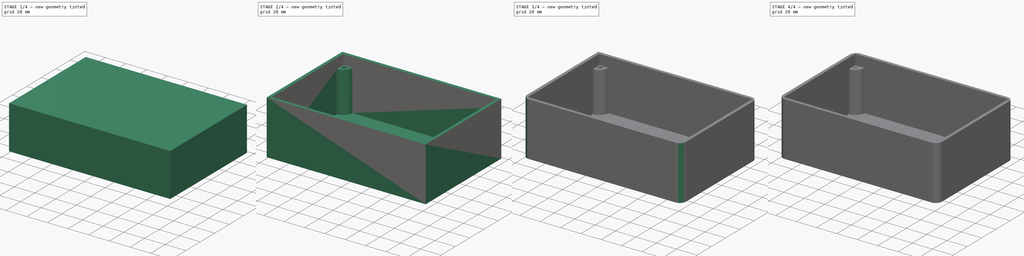
[diagram: build sequence overview — one tinted view per stage of 4, left to right]
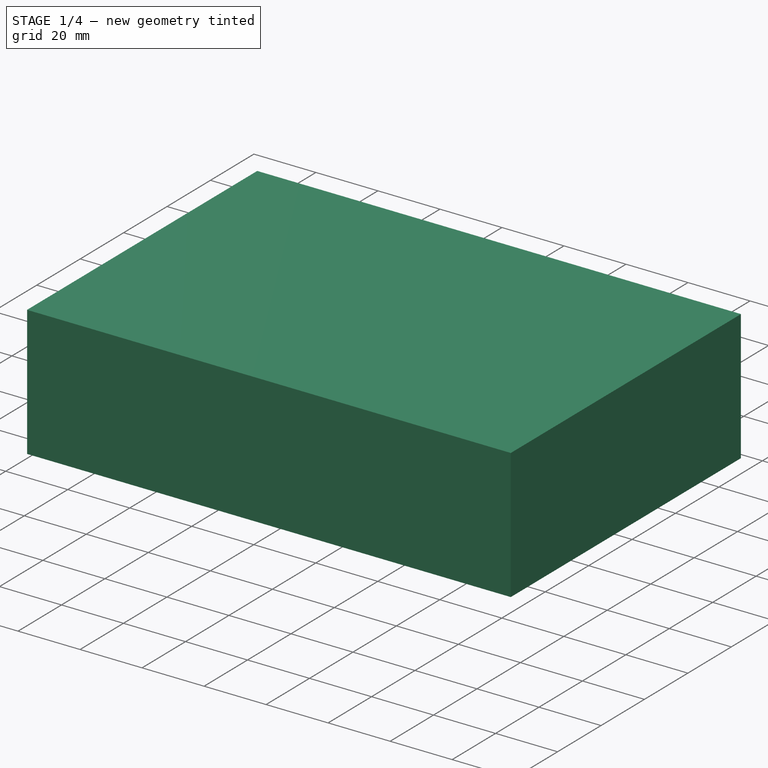
[diagram: stage 1 of 4 — iso view after this stage's code; geometry added in this stage tinted green]
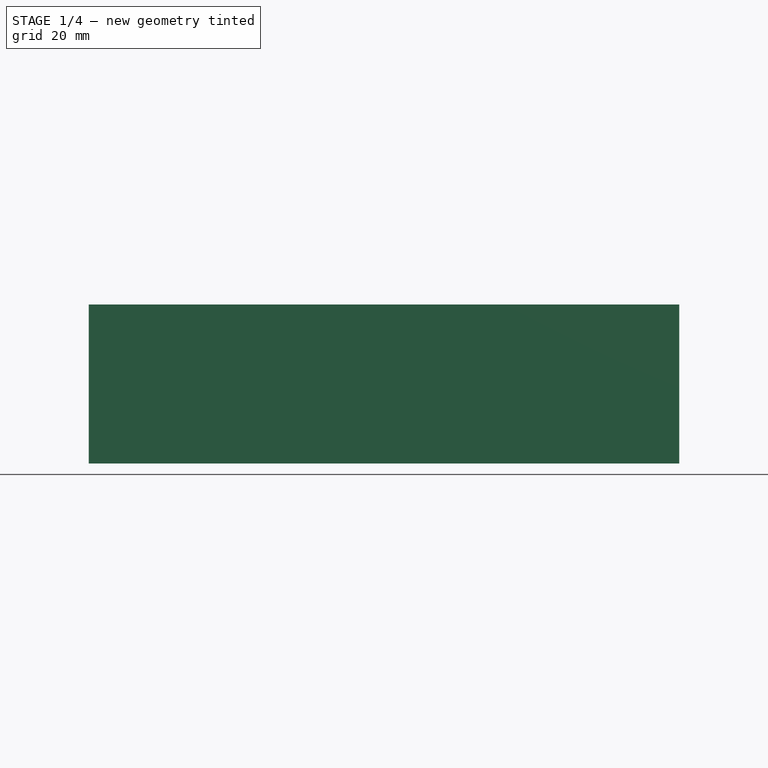
[diagram: stage 1 of 4 — front view after this stage's code; geometry added in this stage tinted green]
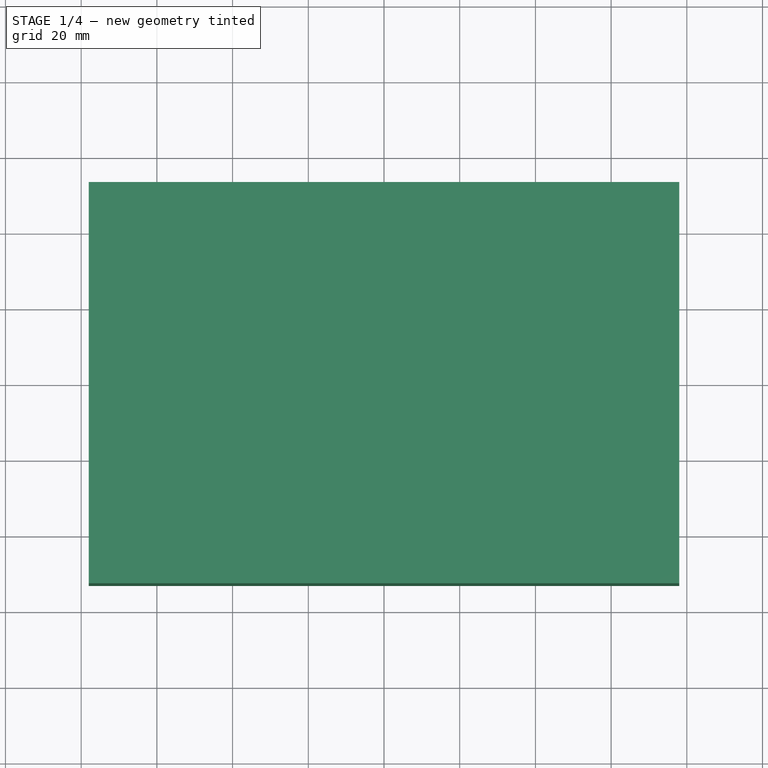
[diagram: stage 1 of 4 — top view after this stage's code; geometry added in this stage tinted green]
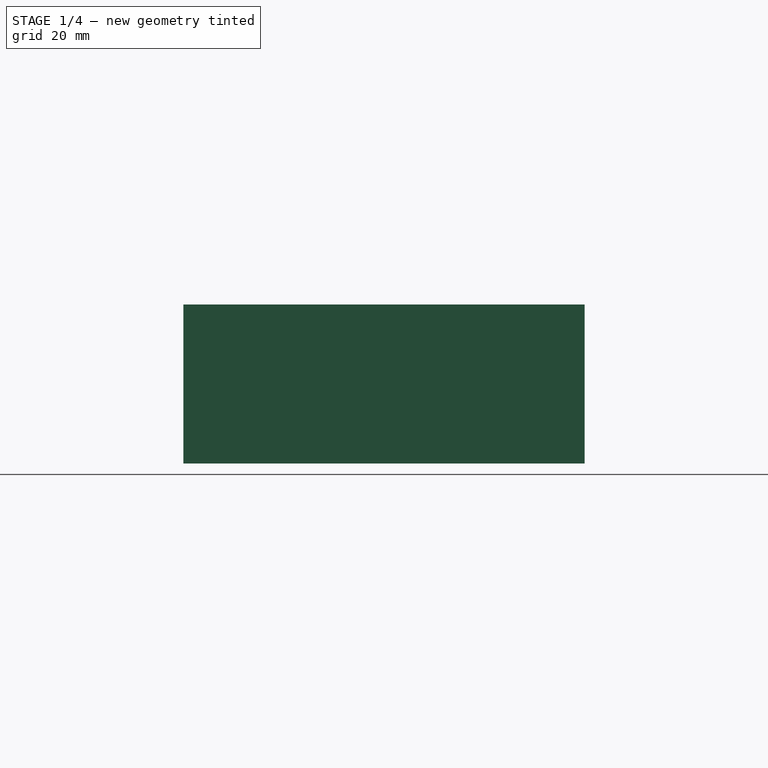
[diagram: stage 1 of 4 — right view after this stage's code; geometry added in this stage tinted green]
FCSTD DOCUMENT  (FreeCAD 1.0R39319 (Git))
Label: box 1
License: All rights reserved
LicenseURL: https://en.wikipedia.org/wiki/All_rights_reserved
objects: Sketcher::SketchObject×4, PartDesign::Fillet×4, PartDesign::Pad×3, PartDesign::Thickness×1, PartDesign::Mirrored×1, PartDesign::Hole×1, PartDesign::Body×1
note: 38 computed .brp shape members not serialized (recipe doc carries the construction recipe); baked Part::Feature solids carry a one-line shape summary decoded from their .brp

FEATURE [Sketcher::SketchObject] Sketch
  ArcFitTolerance = 1e-06
  AttachmentSupport = -> [XY_Plane]
  FullyConstrained = true
  MakeInternals = false
  MapMode = 5
  sketch-geometry (5):
    g0: LineSegment StartX=-75 StartY=-50 StartZ=0 EndX=75 EndY=-50 EndZ=0
    g1: LineSegment StartX=75 StartY=-50 StartZ=0 EndX=75 EndY=50 EndZ=0
    g2: LineSegment StartX=75 StartY=50 StartZ=0 EndX=-75 EndY=50 EndZ=0
    g3: LineSegment StartX=-75 StartY=50 StartZ=0 EndX=-75 EndY=-50 EndZ=0
    g4: GeomPoint [constr] X=0 Y=0 Z=0
  constraints (12):
    c: Coincident(g0,g1)
    c: Coincident(g1,g2)
    c: Coincident(g2,g3)
    c: Coincident(g3,g0)
    c: Horizontal(g0)
    c: Horizontal(g2)
    c: Vertical(g1)
    c: Vertical(g3)
    c: Symmetric(g2,g0,g4)
    c: Distance(g1,g3) = 150
    c: Distance(g0,g2) = 100
    c: Coincident(g4,g-1)
FEATURE [PartDesign::Pad] Pad
  AlongSketchNormal = false
  Direction = (0,0,1)
  Length = 39
  Length2 = 10
  Midplane = true
  Profile = -> Sketch
  ReferenceAxis = -> Sketch [N_Axis]
  Refine = true
  Suppressed = false
  Type = 0
FEATURE [PartDesign::Thickness] Thickness
  Base = -> Pad [Face5]
  BaseFeature = -> Pad
  Intersection = false
  Join = 1
  Mode = 0
  Refine = true
  SupportTransform = false
  Suppressed = false
  Value = 3
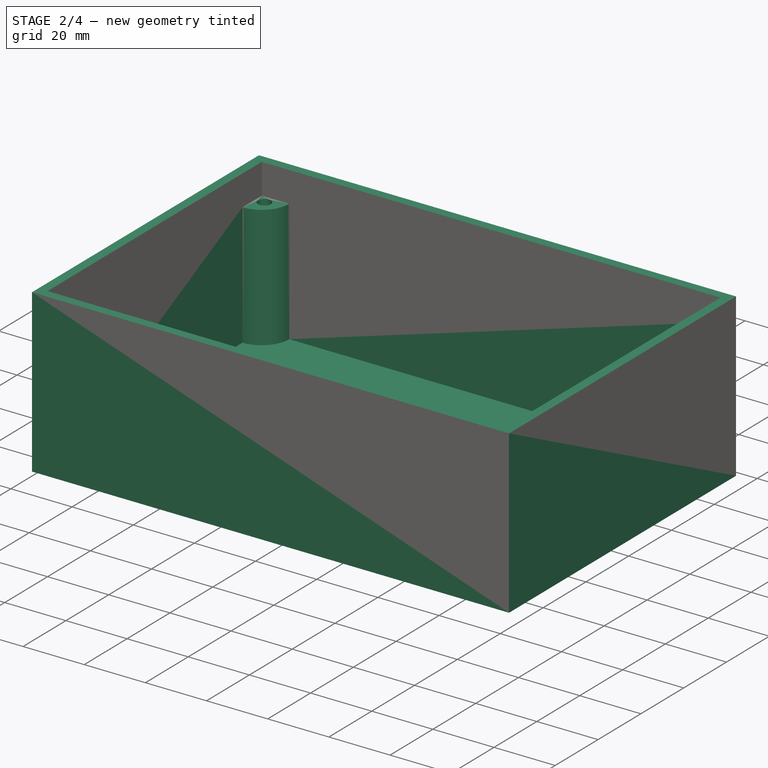
[diagram: stage 2 of 4 — iso view after this stage's code; geometry added in this stage tinted green]
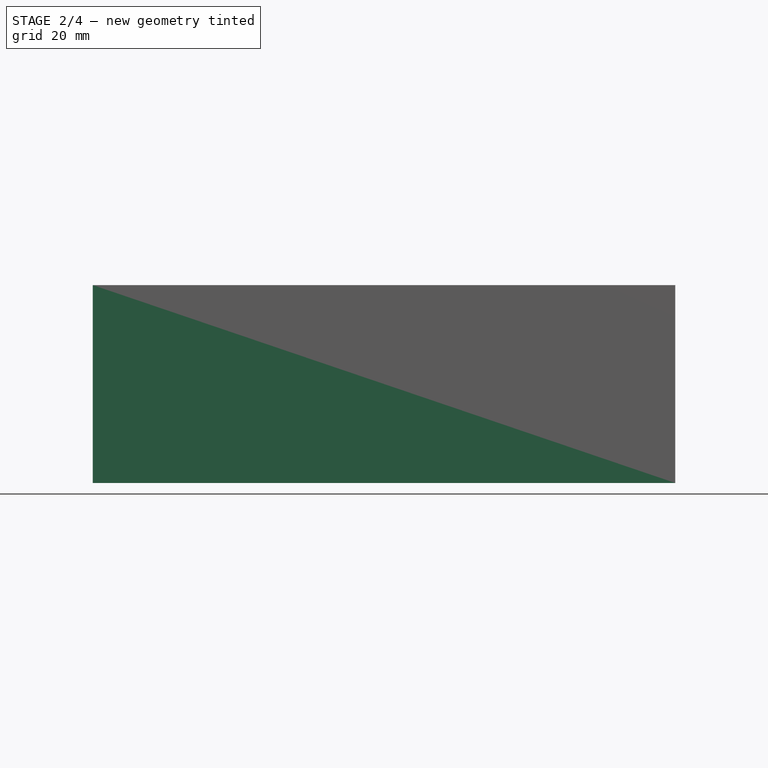
[diagram: stage 2 of 4 — front view after this stage's code; geometry added in this stage tinted green]
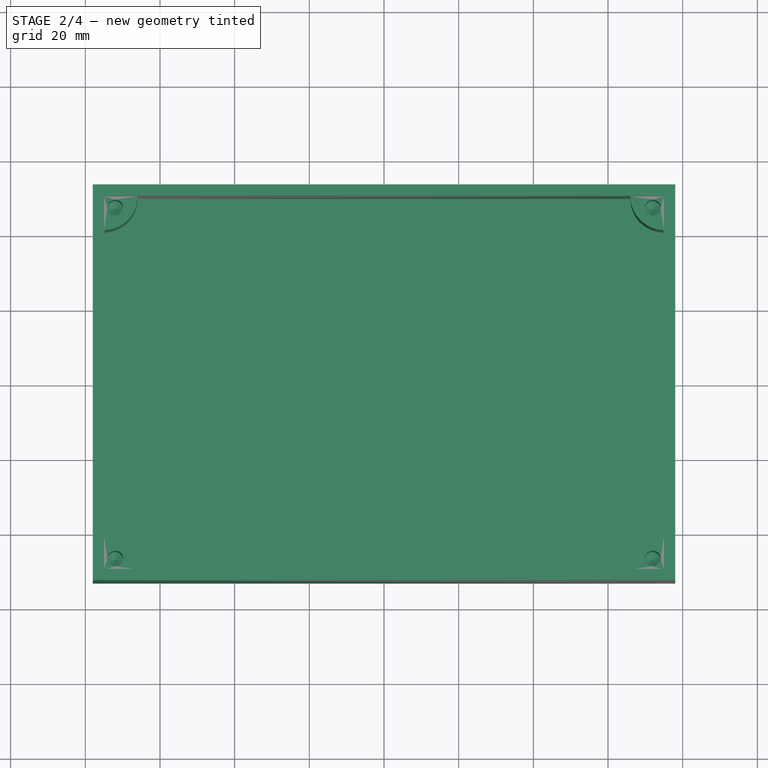
[diagram: stage 2 of 4 — top view after this stage's code; geometry added in this stage tinted green]
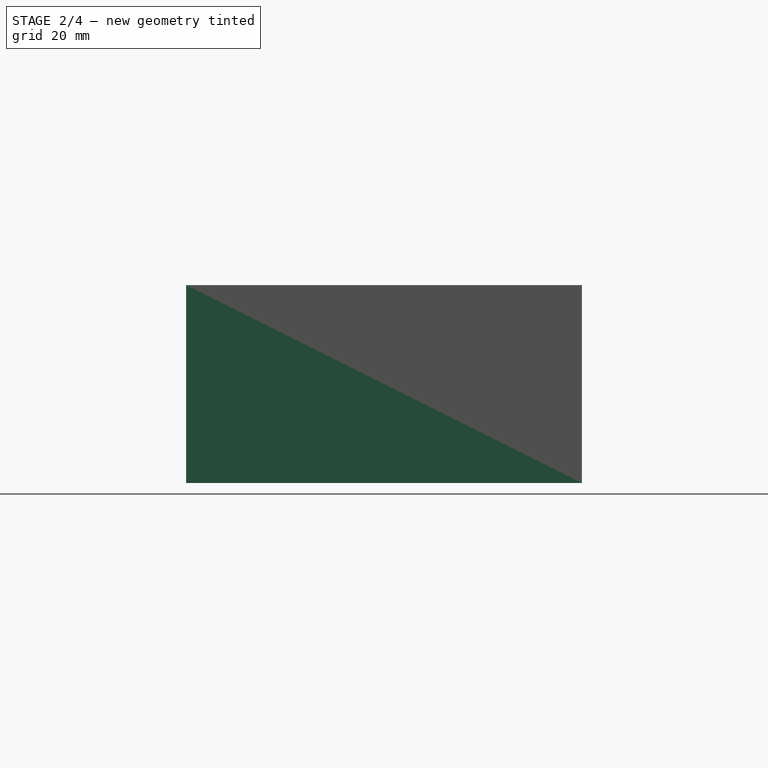
[diagram: stage 2 of 4 — right view after this stage's code; geometry added in this stage tinted green]
FEATURE [Sketcher::SketchObject] Sketch001
  ArcFitTolerance = 1e-06
  AttachmentSupport = -> [Thickness]
  ExternalGeometry = -> [Thickness]
  FullyConstrained = false
  MakeInternals = false
  MapMode = 5
  Placement = pos=(0,0,-19.5) rot=(1,0,0;3.14159rad)
  sketch-geometry (12):
    g0: ArcOfCircle CenterX=75 CenterY=-50 CenterZ=0 NormalX=0 NormalY=0 NormalZ=1 AngleXU=0 Radius=9 StartAngle=3.14159 EndAngle=4.71239
    g1: ArcOfCircle CenterX=75 CenterY=50 CenterZ=0 NormalX=0 NormalY=0 NormalZ=1 AngleXU=0 Radius=9 StartAngle=1.5708 EndAngle=3.14159
    g2: ArcOfCircle CenterX=-75 CenterY=50 CenterZ=0 NormalX=0 NormalY=0 NormalZ=1 AngleXU=0 Radius=9 StartAngle=-2.549e-13 EndAngle=1.5708
    g3: LineSegment StartX=-71.0553 StartY=-9.09369 StartZ=0 EndX=-75 EndY=31.622 EndZ=0
    g4: LineSegment StartX=-75 StartY=50 StartZ=0 EndX=-71.0706 EndY=-50 EndZ=0
    g5: LineSegment StartX=75 StartY=-50 StartZ=0 EndX=75 EndY=-59 EndZ=0
    g6: LineSegment StartX=75 StartY=-50 StartZ=0 EndX=66 EndY=-50 EndZ=0
    g7: LineSegment StartX=75 StartY=50 StartZ=0 EndX=75 EndY=59 EndZ=0
    g8: LineSegment StartX=75 StartY=50 StartZ=0 EndX=66 EndY=50 EndZ=0
    g9: LineSegment StartX=-75 StartY=50 StartZ=0 EndX=-75 EndY=59 EndZ=0
    g10: LineSegment StartX=-75 StartY=50 StartZ=0 EndX=-66 EndY=50 EndZ=0
    g11: ArcOfCircle CenterX=-71.0553 CenterY=-9.09369 CenterZ=0 NormalX=0 NormalY=0 NormalZ=1 AngleXU=0 Radius=40.9063 StartAngle=1.66738 EndAngle=4.71201
  constraints (29):
    c: PointOnObject(g4,g-3)
    c: Radius(g0) = 9
    c: Coincident(g0,g-5)
    c: PointOnObject(g0,g-3)
    c: PointOnObject(g0,g-5)
    c: Radius(g1) = 9
    c: Coincident(g1,g-6)
    c: PointOnObject(g1,g-5)
    c: PointOnObject(g1,g-6)
    c: Radius(g2) = 9
    c: Coincident(g2,g-6)
    c: PointOnObject(g2,g-4)
    c: PointOnObject(g2,g-6)
    c: PointOnObject(g3,g-4)
    c: Coincident(g5,g0)
    c: Coincident(g5,g0)
    c: Coincident(g6,g0)
    c: Coincident(g6,g0)
    c: Coincident(g7,g1)
    c: Coincident(g7,g1)
    c: Coincident(g8,g1)
    c: Coincident(g8,g1)
    c: Coincident(g9,g2)
    c: Coincident(g9,g2)
    c: Coincident(g10,g2)
    c: Coincident(g10,g2)
    c: Coincident(g11,g3)
    c: Coincident(g11,g4)
    c: Coincident(g11,g3)
FEATURE [PartDesign::Pad] Pad001
  BaseFeature = -> Thickness
  Direction = (0,0,1)
  Length = 10
  Length2 = 10
  Profile = -> Sketch001
  ReferenceAxis = -> Sketch001 [N_Axis]
  Refine = true
  Reversed = true
  Suppressed = false
  Type = 3
  UpToFace = -> Thickness [Face5]
FEATURE [PartDesign::Mirrored] Mirrored
  BaseFeature = -> Pad001
  MirrorPlane = -> Sketch001 [H_Axis]
  Originals = -> [Pad001]
  Refine = true
  Suppressed = false
  TransformMode = 0
FEATURE [Sketcher::SketchObject] Sketch003
  ArcFitTolerance = 1e-06
  AttachmentSupport = -> [Mirrored]
  ExternalGeometry = -> [Mirrored]
  FullyConstrained = true
  MakeInternals = false
  MapMode = 5
  sketch-geometry (4):
    g0: Circle CenterX=-72 CenterY=47 CenterZ=0 NormalX=0 NormalY=0 NormalZ=1 AngleXU=0 Radius=2.5
    g1: Circle CenterX=72 CenterY=47 CenterZ=0 NormalX=0 NormalY=0 NormalZ=1 AngleXU=0 Radius=2.5
    g2: Circle CenterX=72 CenterY=-47 CenterZ=0 NormalX=0 NormalY=0 NormalZ=1 AngleXU=0 Radius=2.5
    g3: Circle CenterX=-72 CenterY=-47 CenterZ=0 NormalX=0 NormalY=0 NormalZ=1 AngleXU=0 Radius=2.5
  constraints (10):
    c: DistanceX(g-3,g0) = 3
    c: DistanceY(g0,g-3) = 3
    c: Diameter(g0) = 5
    c: Equal(g3,g2)
    c: Equal(g2,g1)
    c: Equal(g1,g0)
    c: Horizontal(g3,g2)
    c: Symmetric(g0,g3,g-1)
    c: Symmetric(g0,g1,g-2)
    c: Vertical(g2,g1)
FEATURE [Sketcher::SketchObject] Sketch004
  ArcFitTolerance = 1e-06
  FullyConstrained = true
  MakeInternals = false
  MapMode = 5
  sketch-geometry (10):
    g0: LineSegment StartX=-75 StartY=-50 StartZ=0 EndX=75 EndY=-50 EndZ=0
    g1: LineSegment StartX=75 StartY=-50 StartZ=0 EndX=75 EndY=50 EndZ=0
    g2: LineSegment StartX=75 StartY=50 StartZ=0 EndX=-75 EndY=50 EndZ=0
    g3: LineSegment StartX=-75 StartY=50 StartZ=0 EndX=-75 EndY=-50 EndZ=0
    g4: GeomPoint [constr] X=0 Y=0 Z=0
    g5: LineSegment StartX=-78 StartY=-53 StartZ=0 EndX=78 EndY=-53 EndZ=0
    g6: LineSegment StartX=78 StartY=-53 StartZ=0 EndX=78 EndY=53 EndZ=0
    g7: LineSegment StartX=78 StartY=53 StartZ=0 EndX=-78 EndY=53 EndZ=0
    g8: LineSegment StartX=-78 StartY=53 StartZ=0 EndX=-78 EndY=-53 EndZ=0
    g9: GeomPoint [constr] X=0 Y=0 Z=0
  constraints (24):
    c: Coincident(g0,g1)
    c: Coincident(g1,g2)
    c: Coincident(g2,g3)
    c: Coincident(g3,g0)
    c: Horizontal(g0)
    c: Horizontal(g2)
    c: Vertical(g1)
    c: Vertical(g3)
    c: Symmetric(g2,g0,g4)
    c: Distance(g1,g3) = 150
    c: Distance(g0,g2) = 100
    c: Coincident(g4,g-1)
    c: Coincident(g5,g6)
    c: Coincident(g6,g7)
    c: Coincident(g7,g8)
    c: Coincident(g8,g5)
    c: Horizontal(g5)
    c: Horizontal(g7)
    c: Vertical(g6)
    c: Vertical(g8)
    c: Symmetric(g7,g5,g9)
    c: Distance(g6,g8) = 156
    c: Distance(g5,g7) = 106
    c: Coincident(g9,g4)
FEATURE [PartDesign::Pad] Pad002
  BaseFeature = -> Mirrored
  Direction = (1,1,1)
  Length = 10
  Length2 = 10
  Profile = -> Sketch004
  ReferenceAxis = -> Sketch004 [N_Axis]
  Refine = true
  Suppressed = false
  Type = 0
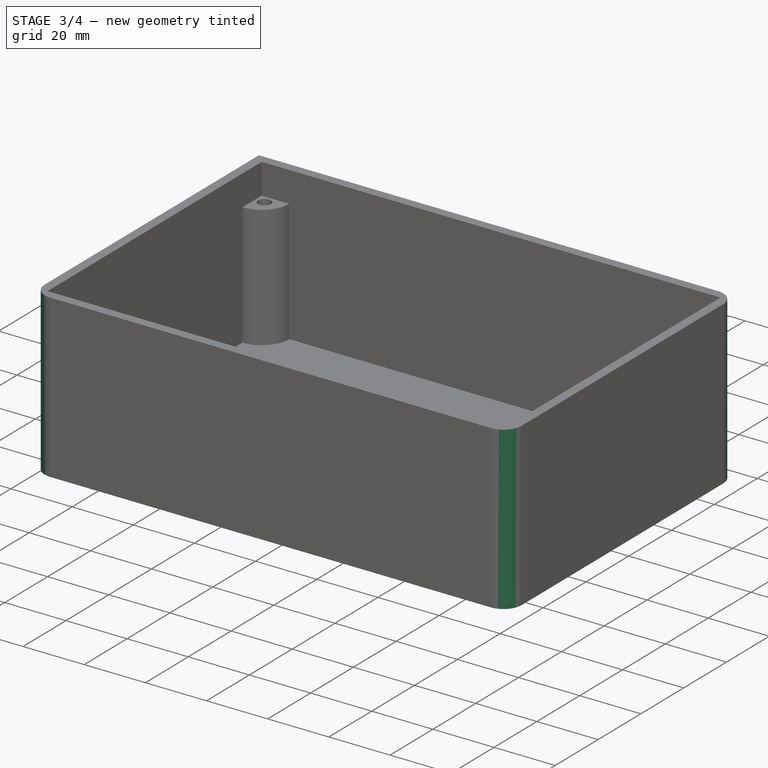
[diagram: stage 3 of 4 — iso view after this stage's code; geometry added in this stage tinted green]
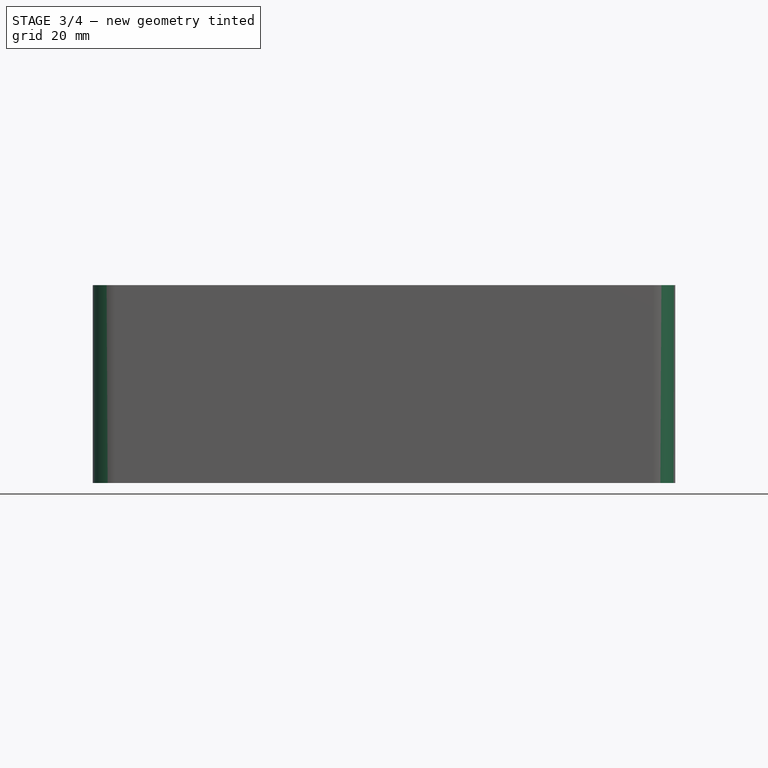
[diagram: stage 3 of 4 — front view after this stage's code; geometry added in this stage tinted green]
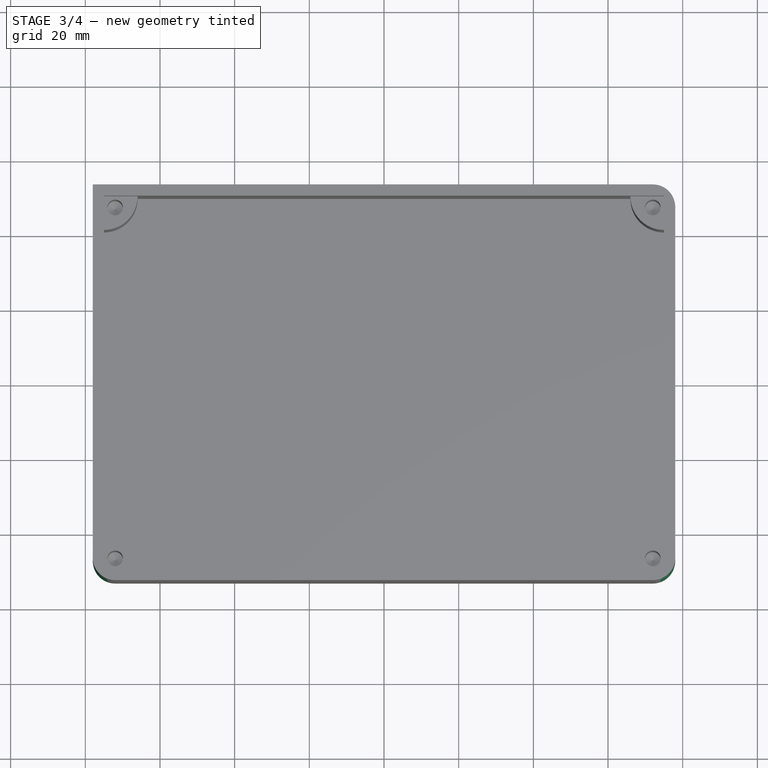
[diagram: stage 3 of 4 — top view after this stage's code; geometry added in this stage tinted green]
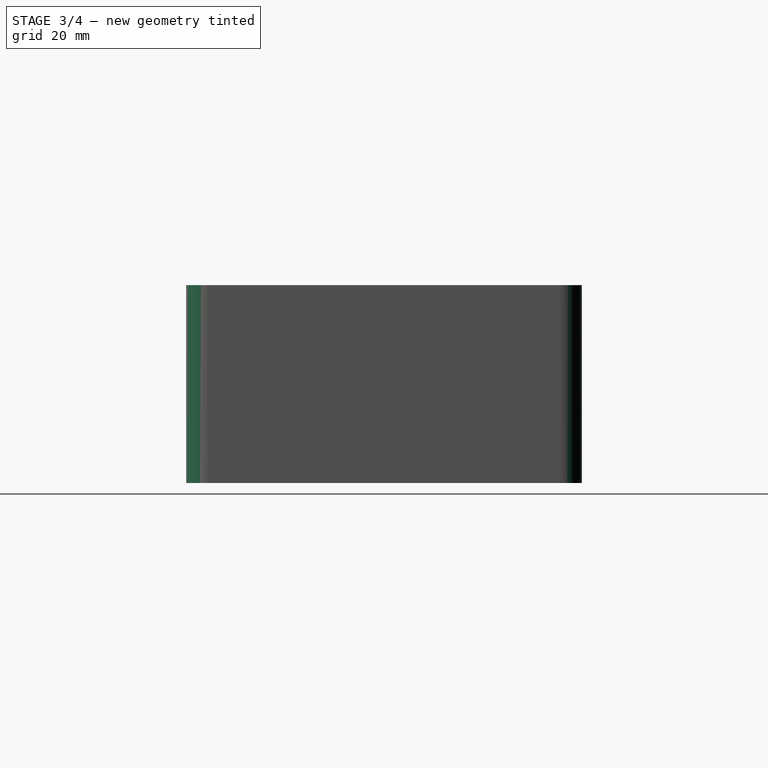
[diagram: stage 3 of 4 — right view after this stage's code; geometry added in this stage tinted green]
FEATURE [PartDesign::Fillet] Fillet
  Base = -> Pad002 [Edge15]
  BaseFeature = -> Pad002
  Radius = 6
  Refine = true
  SupportTransform = false
  Suppressed = false
  UseAllEdges = false
FEATURE [PartDesign::Fillet] Fillet001
  Base = -> Fillet [Edge12]
  BaseFeature = -> Fillet
  Radius = 6
  Refine = true
  SupportTransform = false
  Suppressed = false
  UseAllEdges = false
FEATURE [PartDesign::Fillet] Fillet002
  Base = -> Fillet001 [Edge18]
  BaseFeature = -> Fillet001
  Radius = 6
  Refine = true
  SupportTransform = false
  Suppressed = false
  UseAllEdges = false
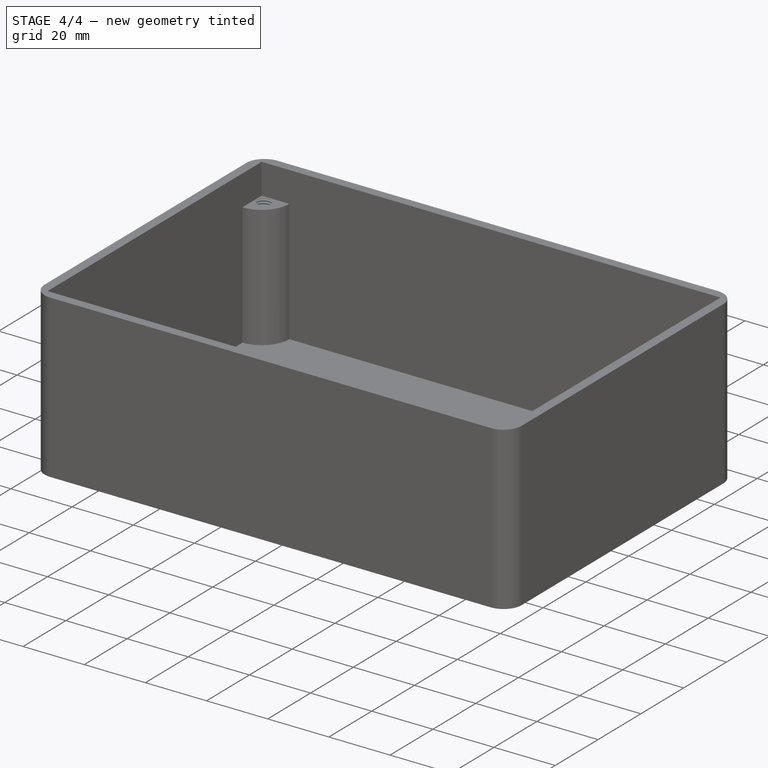
[diagram: stage 4 of 4 — iso view after this stage's code; geometry added in this stage tinted green]
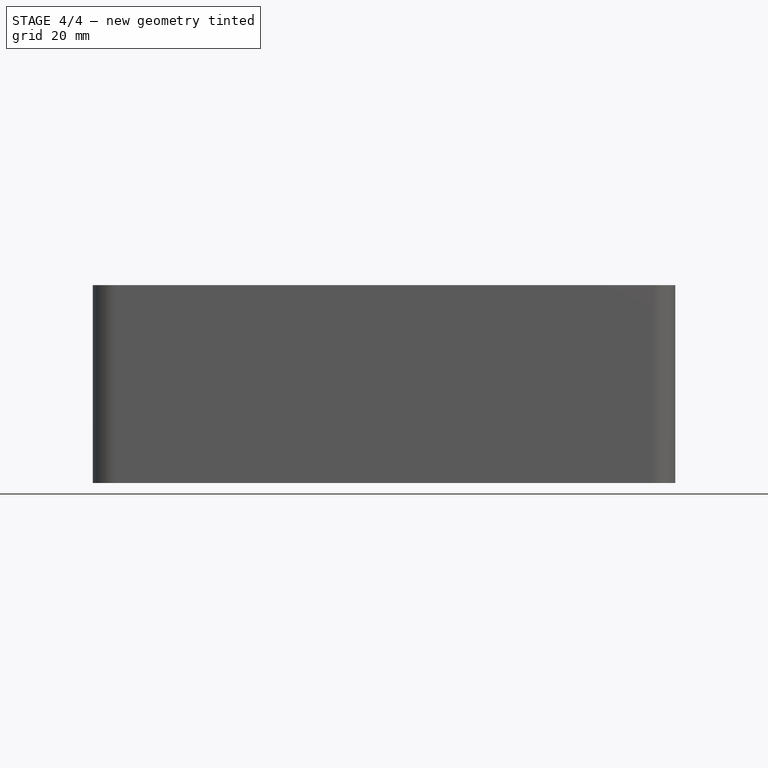
[diagram: stage 4 of 4 — front view after this stage's code; geometry added in this stage tinted green]
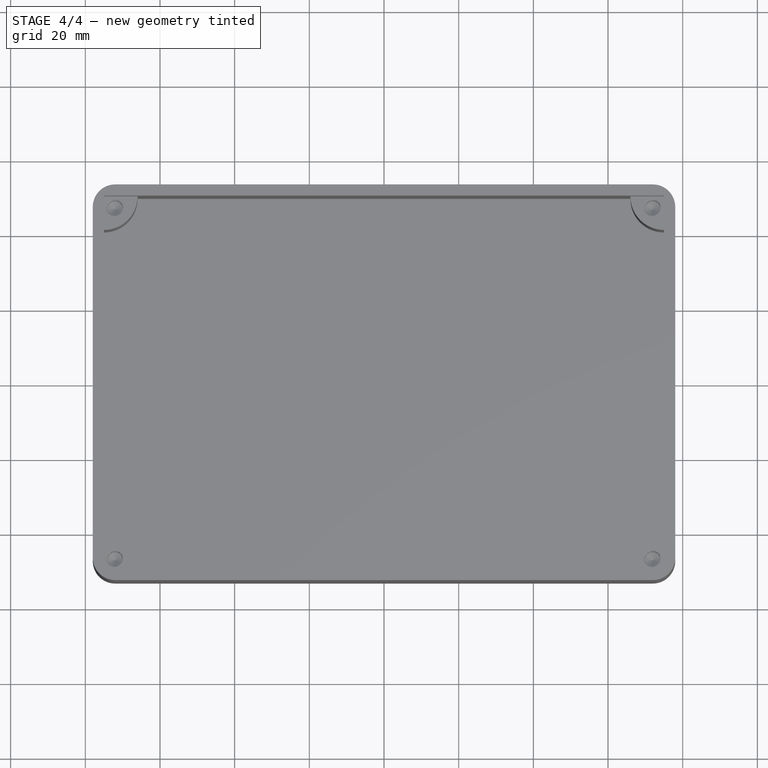
[diagram: stage 4 of 4 — top view after this stage's code; geometry added in this stage tinted green]
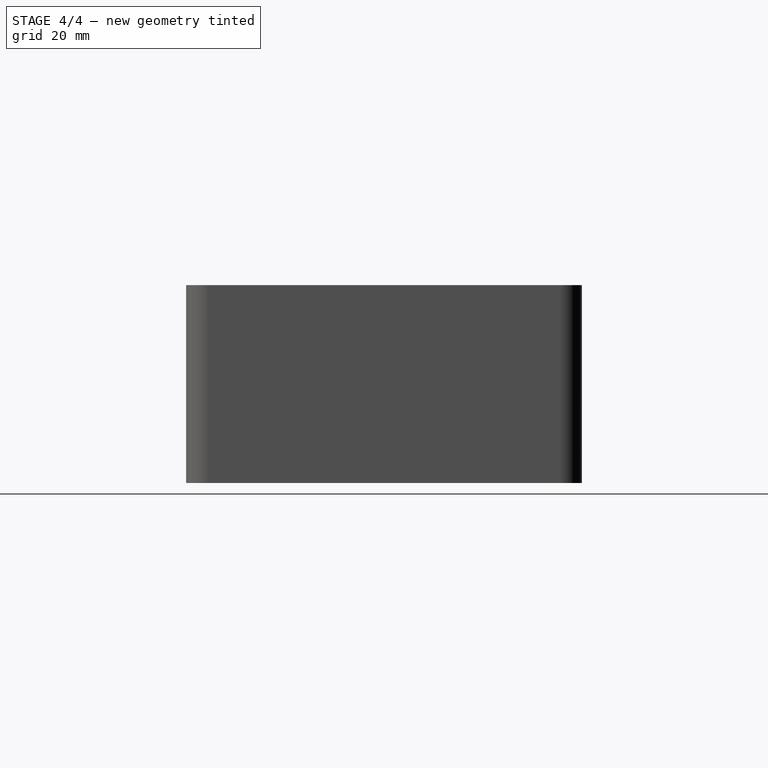
[diagram: stage 4 of 4 — right view after this stage's code; geometry added in this stage tinted green]
FEATURE [PartDesign::Fillet] Fillet003
  Base = -> Fillet002 [Edge19]
  BaseFeature = -> Fillet002
  Radius = 6
  Refine = true
  SupportTransform = false
  Suppressed = false
  UseAllEdges = false
FEATURE [PartDesign::Hole] Hole
  BaseFeature = -> Fillet003
  CustomThreadClearance = 0
  Depth = 20
  DepthType = 0
  Diameter = 4.224
  DrillForDepth = false
  DrillPoint = 1
  DrillPointAngle = 118
  HoleCutCountersinkAngle = 90
  HoleCutCustomValues = false
  HoleCutDepth = 0
  HoleCutDiameter = 6.1
  HoleCutType = 0
  ModelThread = true
  Profile = -> Sketch003
  Refine = true
  Suppressed = false
  Tapered = false
  TaperedAngle = 90
  ThreadClass = 0
  ThreadDepth = 20
  ThreadDepthType = 1
  ThreadDirection = 0
  ThreadFit = 0
  ThreadSize = 13
  ThreadType = 1
  Threaded = true
  UseCustomThreadClearance = false
FEATURE [PartDesign::Body] Body
  AllowCompound = false
  Group = -> [Sketch,Pad,Thickness,Sketch001,Pad001,Mirrored,Sketch003,Sketch004,Pad002,Fillet,Fillet001,Fillet002,Fillet003,Hole]
  Origin = -> Origin
  Tip = -> Hole
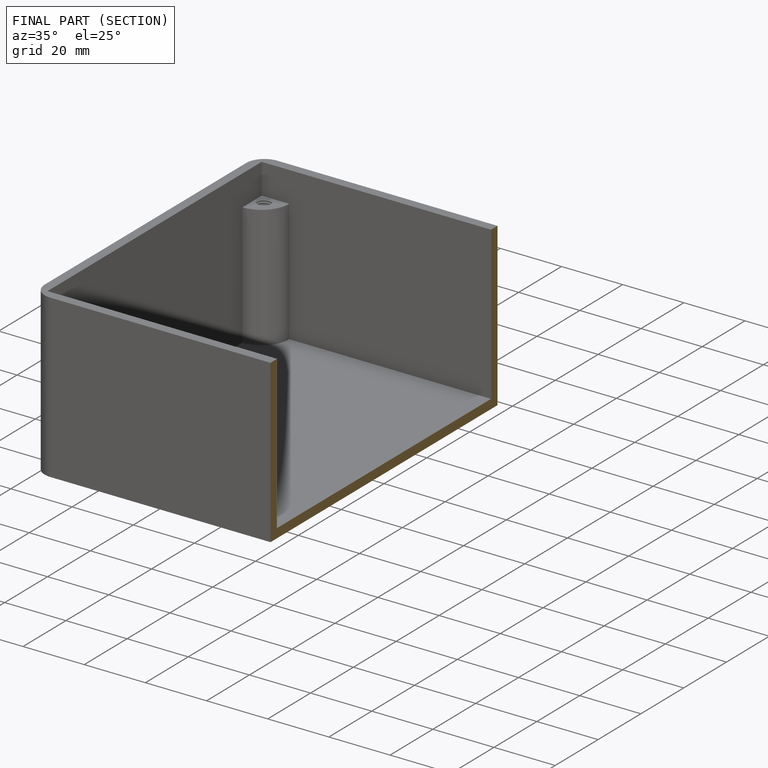
[diagram: finished part — half-section view (interior)]
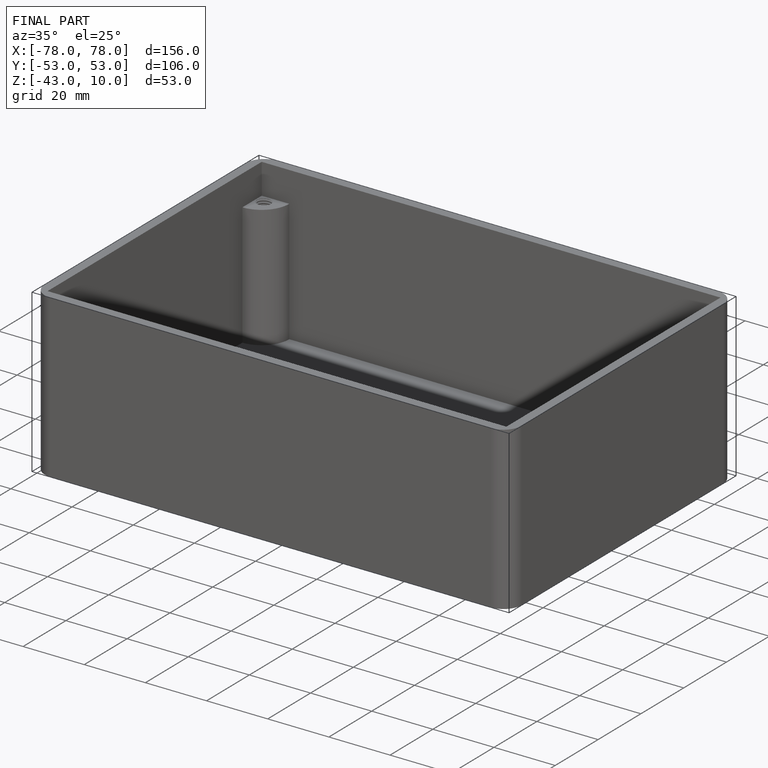
[diagram: finished part — iso view with bounding-box wireframe]
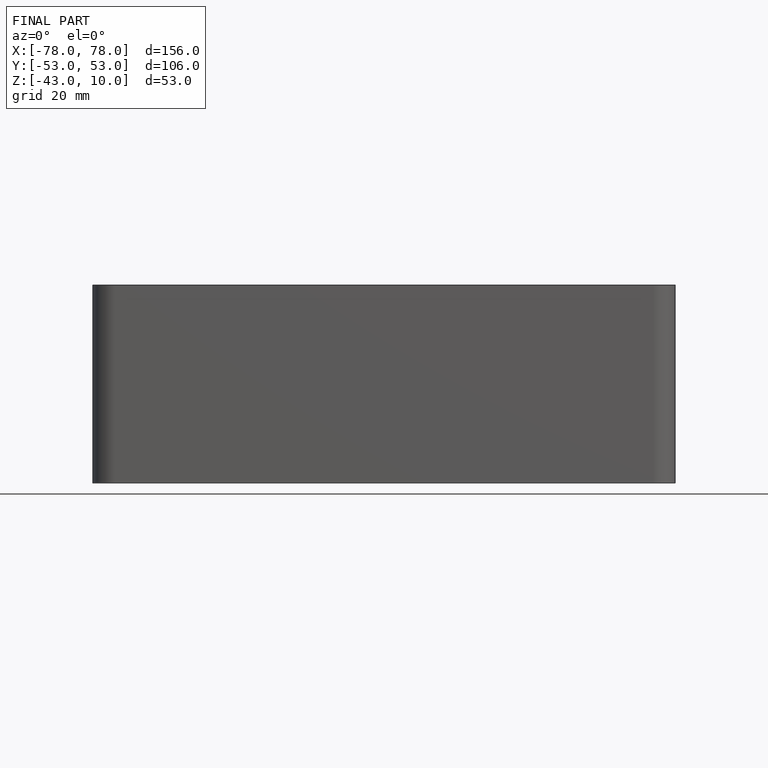
[diagram: finished part — front view with bounding-box wireframe]
